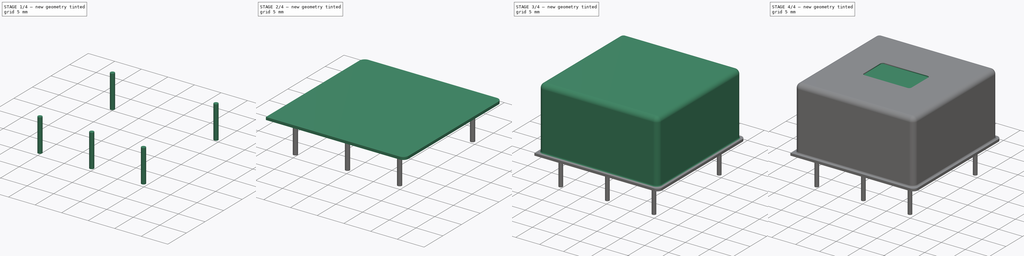
[diagram: build sequence overview — one tinted view per stage of 4, left to right]
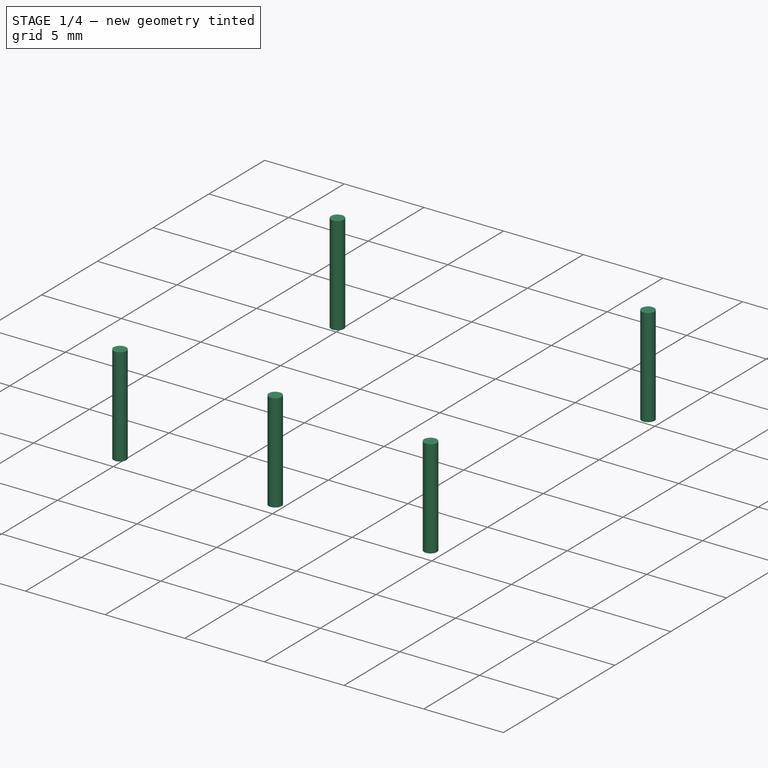
[diagram: stage 1 of 4 — iso view after this stage's code; geometry added in this stage tinted green]
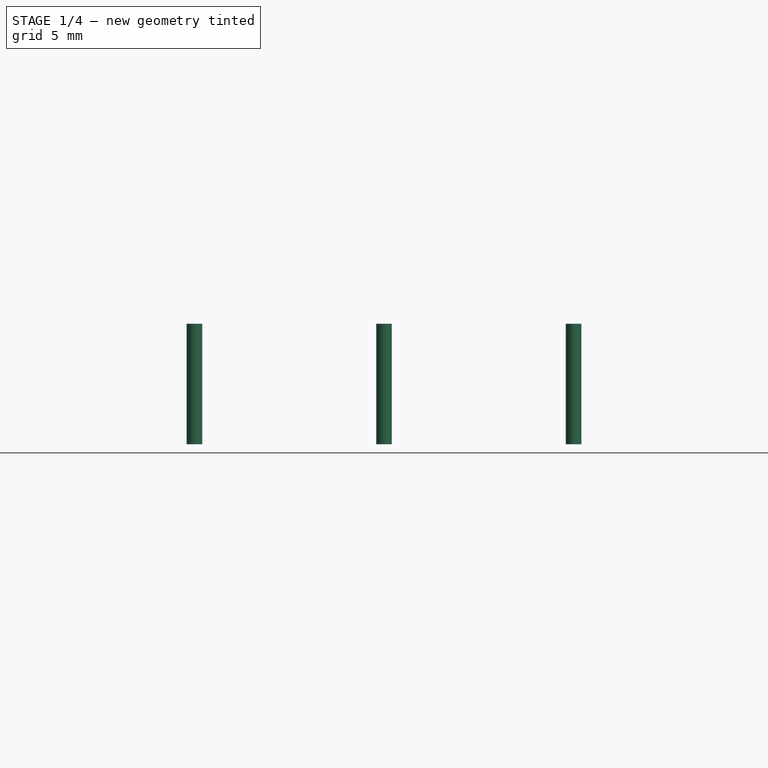
[diagram: stage 1 of 4 — front view after this stage's code; geometry added in this stage tinted green]
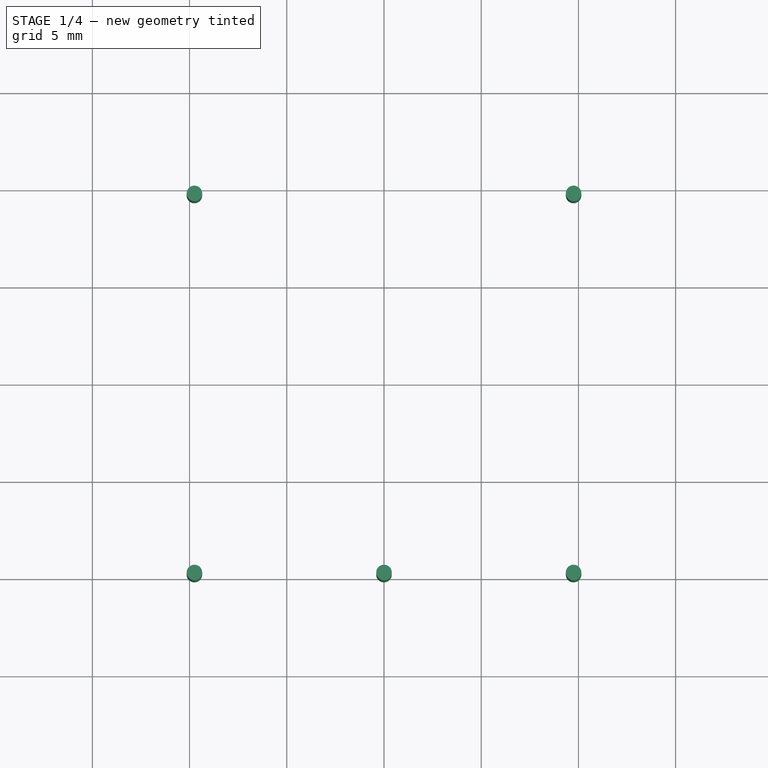
[diagram: stage 1 of 4 — top view after this stage's code; geometry added in this stage tinted green]
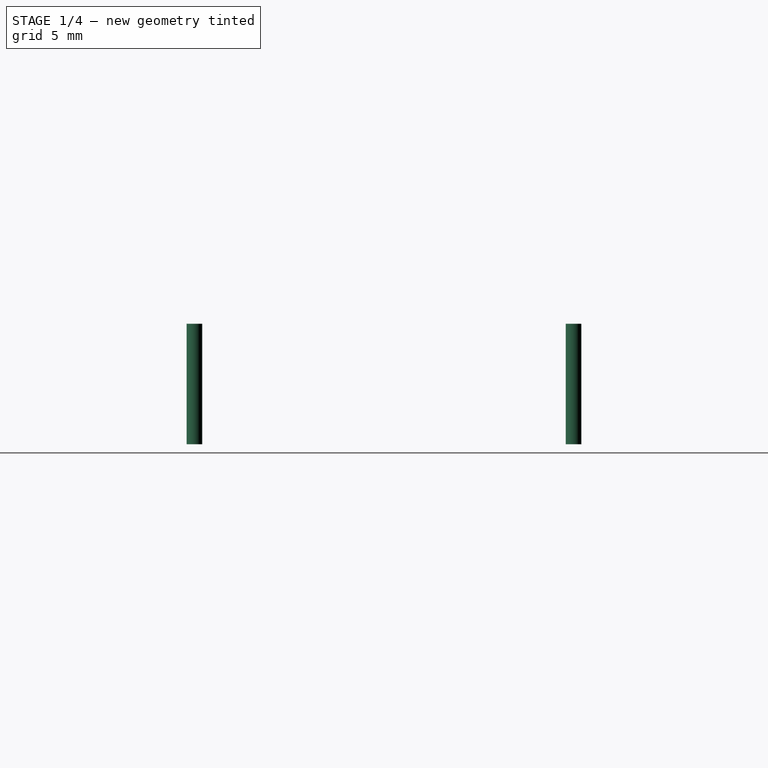
[diagram: stage 1 of 4 — right view after this stage's code; geometry added in this stage tinted green]
FCSTD DOCUMENT  (FreeCAD 0.16R6706 (Git))
Label: OCXO-Angelia
License: All rights reserved
LicenseURL: http://en.wikipedia.org/wiki/All_rights_reserved
objects: Sketcher::SketchObject×6, PartDesign::Revolution×3, Part::Fuse×3, PartDesign::Pad×2, PartDesign::Fillet×2, Part::FeaturePython×2, PartDesign::Pocket×1
note: 25 computed .brp shape members not serialized (recipe doc carries the construction recipe); baked Part::Feature solids carry a one-line shape summary decoded from their .brp

FEATURE [Sketcher::SketchObject] Sketch003
  Placement = pos=(0,9.75,0) rot=(1,0,0;1.5708rad)
  sketch-geometry (5):
    g0: LineSegment [constr] StartX=9.75 StartY=0 StartZ=0 EndX=9.75 EndY=-8 EndZ=0
    g1: LineSegment StartX=9.75 StartY=0 StartZ=0 EndX=10.15 EndY=0 EndZ=0
    g2: LineSegment StartX=10.15 StartY=0 StartZ=0 EndX=10.15 EndY=-6.2 EndZ=0
    g3: LineSegment StartX=10.15 StartY=-6.2 StartZ=0 EndX=9.75 EndY=-6.2 EndZ=0
    g4: LineSegment StartX=9.75 StartY=-6.2 StartZ=0 EndX=9.75 EndY=0 EndZ=0
  constraints (15):
    c: Vertical(g0)
    c: Coincident(g1,g2)
    c: Coincident(g2,g3)
    c: Coincident(g3,g4)
    c: Coincident(g4,g1)
    c: Horizontal(g1)
    c: Horizontal(g3)
    c: Vertical(g2)
    c: Vertical(g4)
    c: Coincident(g1,g0)
    c: DistanceY(g2,g2) = 6.2
    c: DistanceY(g0,g0) = 8
    c: DistanceX(g1,g1) = 0.4
    c: PointOnObject(g0,g-1)
    c: DistanceX(g0) = 9.75
FEATURE [PartDesign::Revolution] Revolution001
  Angle = 360
  Axis = (0,0,-8)
  Base = (9.75,9.75,0)
  Placement = pos=(0,9.75,0) rot=(1,0,0;1.5708rad)
  ReferenceAxis = -> Sketch003 [Axis0]
  Sketch = -> Sketch003
FEATURE [Part::FeaturePython] Array001  # Draft array (typed FeaturePython)
  Angle = 360
  ArrayType = 1
  Axis = (0,0,1)
  Base = -> Revolution001
  Center = (0,0,0)
  Fuse = false
  IntervalAxis = (0,0,0)
  IntervalX = (1,0,0)
  IntervalY = (0,1,0)
  IntervalZ = (0,0,0)
  NumberPolar = 4
  NumberX = 2
  NumberY = 2
  NumberZ = 1
FEATURE [Sketcher::SketchObject] Sketch005
  Placement = pos=(0,-9.75,0) rot=(-1,0,0;4.71239rad)
  sketch-geometry (4):
    g0: LineSegment StartX=0 StartY=0 StartZ=0 EndX=0.4 EndY=0 EndZ=0
    g1: LineSegment StartX=0.4 StartY=0 StartZ=0 EndX=0.4 EndY=-6.2 EndZ=0
    g2: LineSegment StartX=0.4 StartY=-6.2 StartZ=0 EndX=0 EndY=-6.2 EndZ=0
    g3: LineSegment StartX=0 StartY=-6.2 StartZ=0 EndX=0 EndY=0 EndZ=0
  constraints (11):
    c: Coincident(g0,g1)
    c: Coincident(g1,g2)
    c: Coincident(g2,g3)
    c: Coincident(g3,g0)
    c: Horizontal(g0)
    c: Horizontal(g2)
    c: Vertical(g1)
    c: Vertical(g3)
    c: DistanceY(g1,g1) = 6.2
    c: DistanceX(g0,g0) = 0.4
    c: Coincident(g0,g-1)
FEATURE [PartDesign::Revolution] Revolution002
  Angle = 360
  Axis = (0,0,1)
  Base = (0,-9.75,0)
  Placement = pos=(0,-9.75,0) rot=(-1,0,0;4.71239rad)
  ReferenceAxis = -> Sketch005 [V_Axis]
  Reversed = true
  Sketch = -> Sketch005
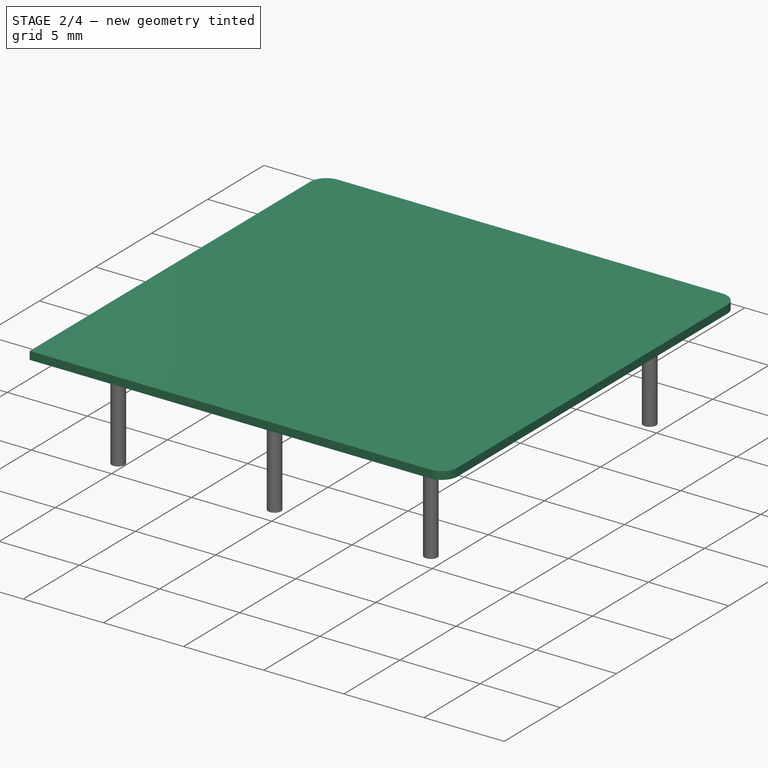
[diagram: stage 2 of 4 — iso view after this stage's code; geometry added in this stage tinted green]
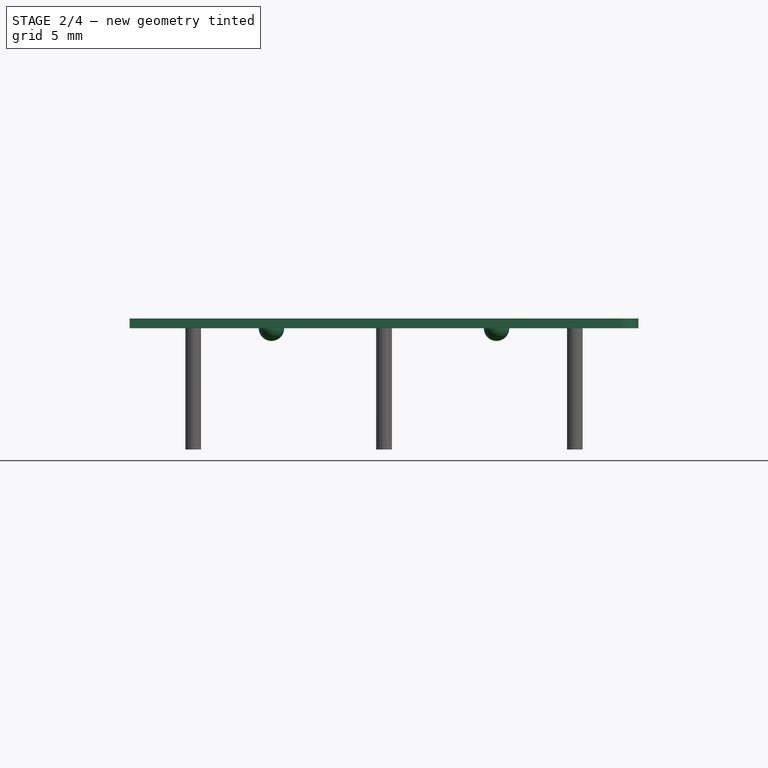
[diagram: stage 2 of 4 — front view after this stage's code; geometry added in this stage tinted green]
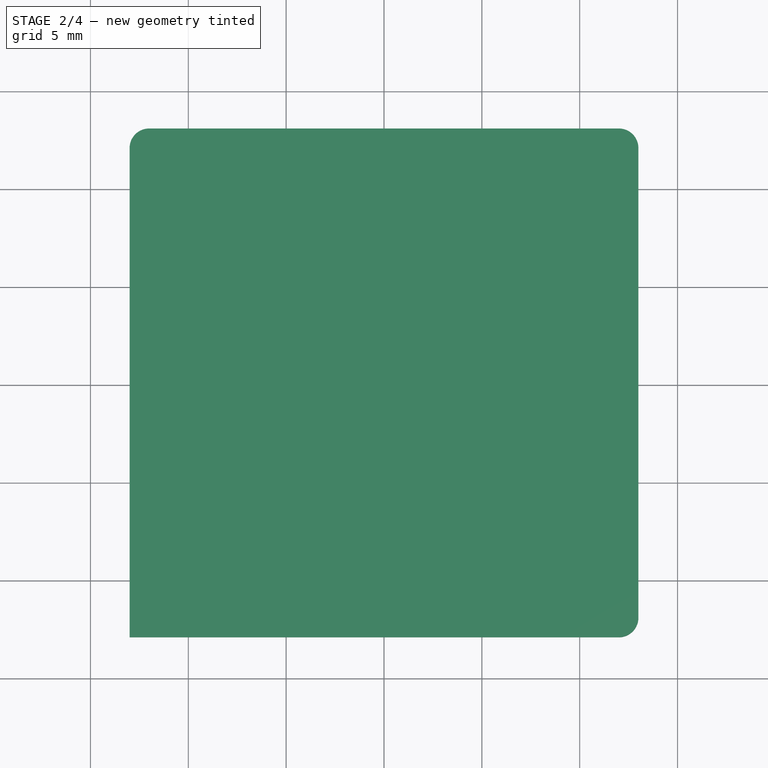
[diagram: stage 2 of 4 — top view after this stage's code; geometry added in this stage tinted green]
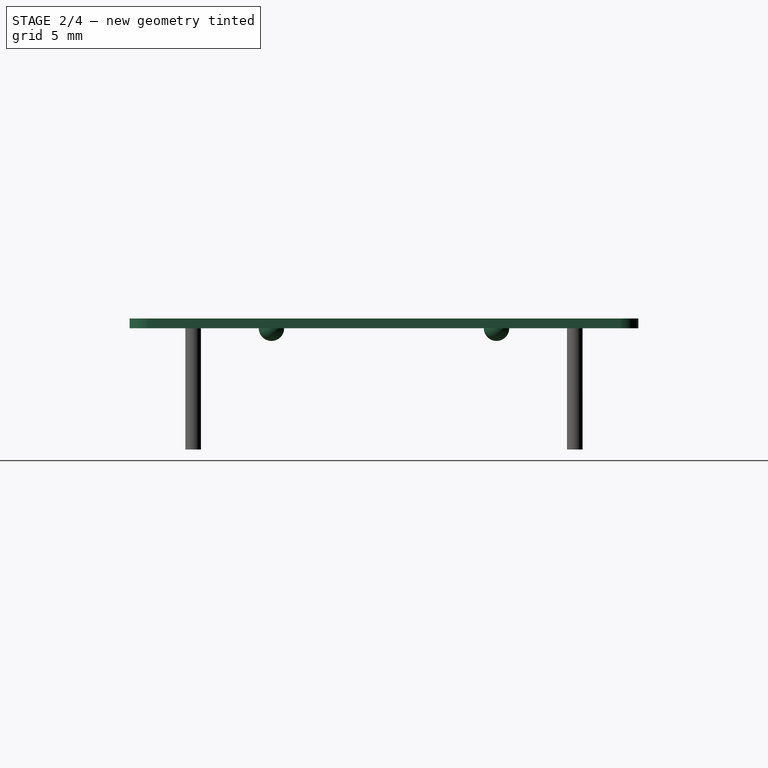
[diagram: stage 2 of 4 — right view after this stage's code; geometry added in this stage tinted green]
FEATURE [Sketcher::SketchObject] Sketch
  sketch-geometry (8):
    g0: Circle [constr] CenterX=0 CenterY=0 CenterZ=0 NormalX=0 NormalY=0 NormalZ=1 Radius=16.9706
    g1: LineSegment StartX=-12 StartY=13 StartZ=0 EndX=12 EndY=13 EndZ=0
    g2: LineSegment StartX=13 StartY=12 StartZ=0 EndX=13 EndY=-12 EndZ=0
    g3: LineSegment StartX=12 StartY=-13 StartZ=0 EndX=-13 EndY=-13 EndZ=0
    g4: LineSegment StartX=-13 StartY=-13 StartZ=0 EndX=-13 EndY=12 EndZ=0
    g5: ArcOfCircle CenterX=-12 CenterY=12 CenterZ=0 NormalX=0 NormalY=0 NormalZ=1 Radius=1 StartAngle=1.5708 EndAngle=3.14159
    g6: ArcOfCircle CenterX=12 CenterY=12 CenterZ=0 NormalX=0 NormalY=0 NormalZ=1 Radius=1 StartAngle=0 EndAngle=1.5708
    g7: ArcOfCircle CenterX=12 CenterY=-12 CenterZ=0 NormalX=0 NormalY=0 NormalZ=1 Radius=1 StartAngle=4.71239 EndAngle=6.28319
  constraints (20):
    c: Coincident(g3,g4)
    c: Horizontal(g1)
    c: Horizontal(g3)
    c: Vertical(g2)
    c: Vertical(g4)
    c: Tangent(g1,g5) = 1.5708
    c: Tangent(g4,g5) = 1.5708
    c: Tangent(g1,g6) = 1.5708
    c: Tangent(g2,g6) = 1.5708
    c: Tangent(g2,g7) = 1.5708
    c: Tangent(g3,g7) = 1.5708
    c: PointOnObject(g6,g0)
    c: PointOnObject(g5,g0)
    c: PointOnObject(g7,g0)
    c: Radius(g5) = 1
    c: Equal(g5,g6)
    c: Equal(g5,g7)
    c: DistanceX(g4,g2) = 26
    c: DistanceY(g3,g1) = 26
    c: Coincident(g0,g-1)
FEATURE [PartDesign::Pad] Pad
  Length = 0.5
  Length2 = 100
  Sketch = -> Sketch
  Type = 0
FEATURE [Sketcher::SketchObject] Sketch002
  Placement = pos=(0,5.75,0) rot=(1,0,0;1.5708rad)
  sketch-geometry (4):
    g0: LineSegment StartX=5.75 StartY=-0.65 StartZ=0 EndX=5.75 EndY=0 EndZ=0
    g1: LineSegment StartX=5.75 StartY=0 StartZ=0 EndX=6.4 EndY=0 EndZ=0
    g2: ArcOfCircle CenterX=5.75 CenterY=0 CenterZ=0 NormalX=0 NormalY=0 NormalZ=1 Radius=0.65 StartAngle=4.71239 EndAngle=6.28319
    g3: LineSegment [constr] StartX=5.75 StartY=0 StartZ=0 EndX=5.75 EndY=-3 EndZ=0
  constraints (12):
    c: Vertical(g0)
    c: Coincident(g0,g1)
    c: Horizontal(g1)
    c: Coincident(g2,g0)
    c: Coincident(g0,g2)
    c: Coincident(g1,g2)
    c: PointOnObject(g0,g-1)
    c: DistanceY(g0,g0) = 0.65
    c: Coincident(g3,g0)
    c: Vertical(g3)
    c: DistanceY(g3,g3) = 3
    c: DistanceX(g0) = 5.75
FEATURE [PartDesign::Revolution] Revolution
  Angle = 360
  Axis = (0,0,-3)
  Base = (5.75,5.75,0)
  Placement = pos=(0,5.75,0) rot=(1,0,0;1.5708rad)
  ReferenceAxis = -> Sketch002 [Axis0]
  Sketch = -> Sketch002
FEATURE [Part::FeaturePython] Array  # Draft array (typed FeaturePython)
  Angle = 360
  ArrayType = 1
  Axis = (0,0,1)
  Base = -> Revolution
  Center = (0,0,0)
  Fuse = false
  IntervalAxis = (0,0,0)
  IntervalX = (1,0,0)
  IntervalY = (0,1,0)
  IntervalZ = (0,0,0)
  NumberPolar = 4
  NumberX = 2
  NumberY = 2
  NumberZ = 1
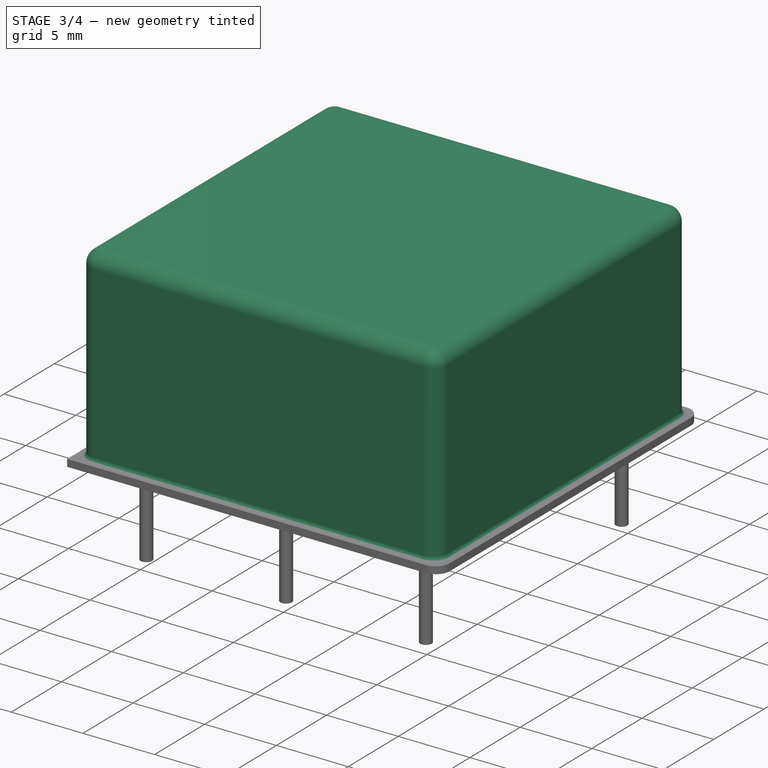
[diagram: stage 3 of 4 — iso view after this stage's code; geometry added in this stage tinted green]
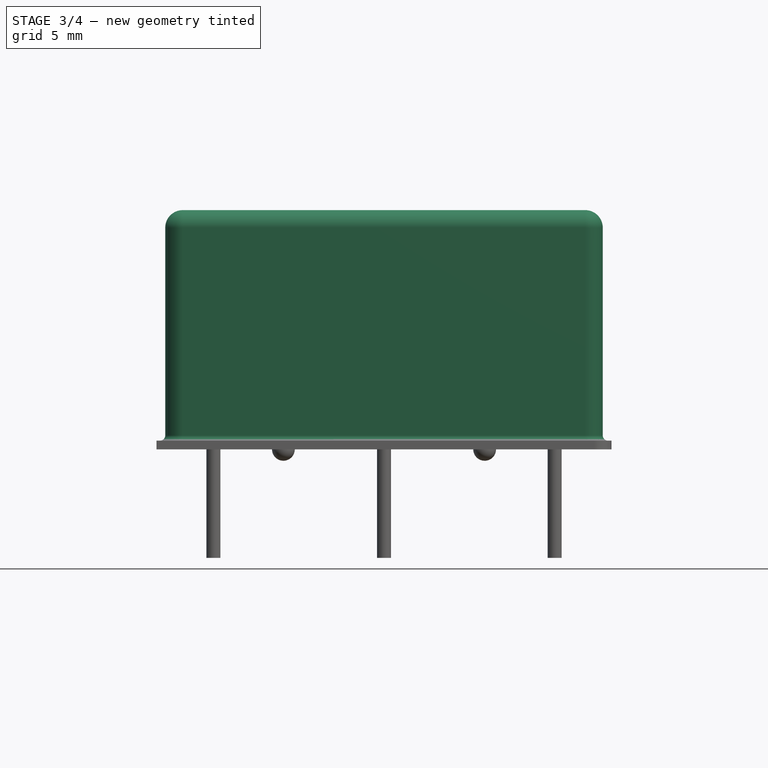
[diagram: stage 3 of 4 — front view after this stage's code; geometry added in this stage tinted green]
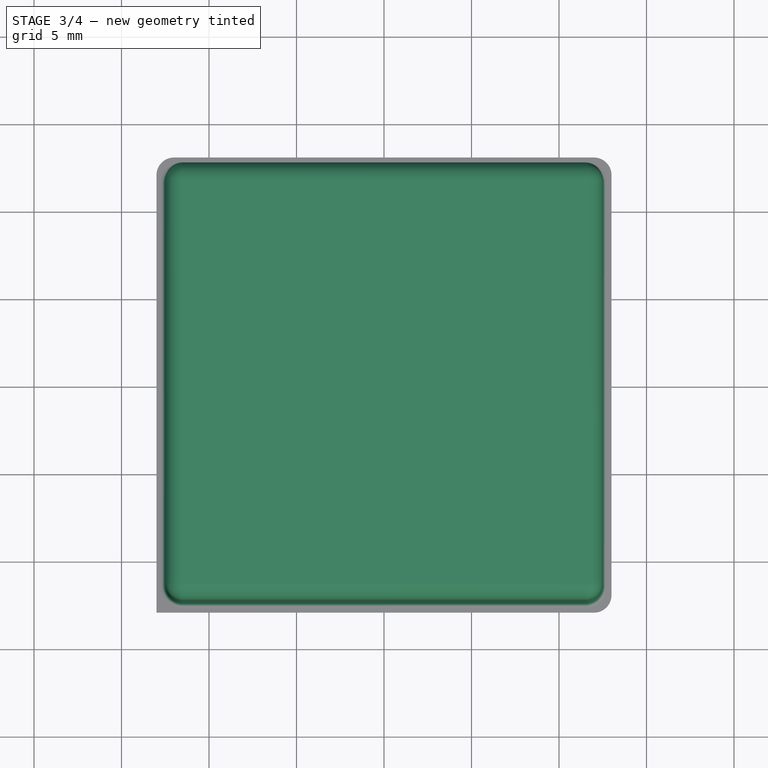
[diagram: stage 3 of 4 — top view after this stage's code; geometry added in this stage tinted green]
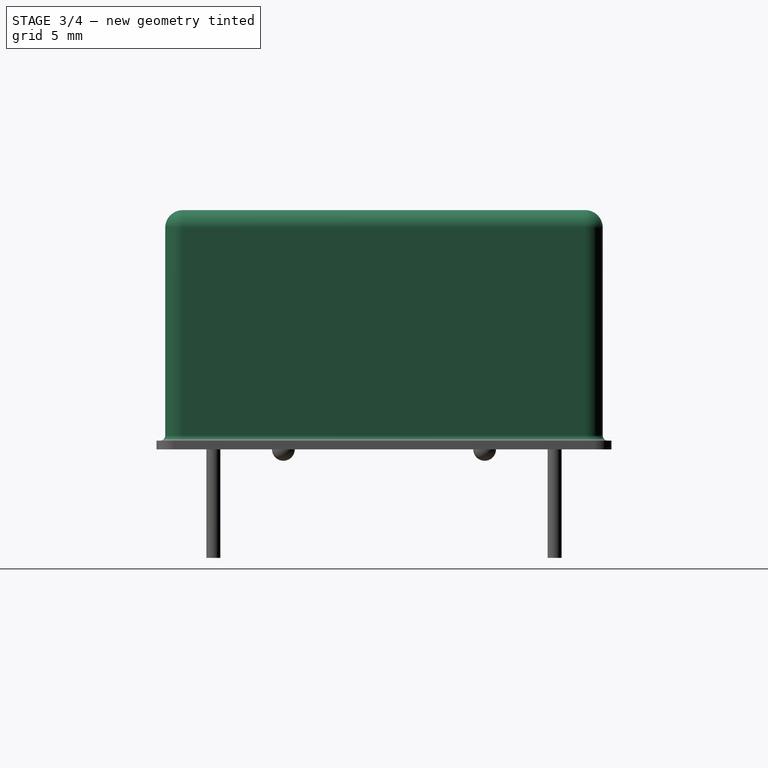
[diagram: stage 3 of 4 — right view after this stage's code; geometry added in this stage tinted green]
FEATURE [Sketcher::SketchObject] Sketch001
  Placement = pos=(0,0,0.5) rot=(0,0,1;0rad)
  Support = -> Pad [Face9]
  sketch-geometry (9):
    g0: LineSegment StartX=-11.5 StartY=12.5 StartZ=0 EndX=11.5 EndY=12.5 EndZ=0
    g1: LineSegment StartX=12.5 StartY=11.5 StartZ=0 EndX=12.5 EndY=-11.5 EndZ=0
    g2: LineSegment StartX=11.5 StartY=-12.5 StartZ=0 EndX=-11.5 EndY=-12.5 EndZ=0
    g3: LineSegment StartX=-12.5 StartY=-11.5 StartZ=0 EndX=-12.5 EndY=11.5 EndZ=0
    g4: Circle [constr] CenterX=0 CenterY=0 CenterZ=0 NormalX=0 NormalY=0 NormalZ=1 Radius=16.2635
    g5: ArcOfCircle CenterX=-11.5 CenterY=11.5 CenterZ=0 NormalX=0 NormalY=0 NormalZ=1 Radius=1 StartAngle=1.5708 EndAngle=3.14159
    g6: ArcOfCircle CenterX=-11.5 CenterY=-11.5 CenterZ=0 NormalX=0 NormalY=0 NormalZ=1 Radius=1 StartAngle=3.14159 EndAngle=4.71239
    g7: ArcOfCircle CenterX=11.5 CenterY=-11.5 CenterZ=0 NormalX=0 NormalY=0 NormalZ=1 Radius=1 StartAngle=4.71239 EndAngle=6.28319
    g8: ArcOfCircle CenterX=11.5 CenterY=11.5 CenterZ=0 NormalX=0 NormalY=0 NormalZ=1 Radius=1 StartAngle=0 EndAngle=1.5708
  constraints (22):
    c: Horizontal(g0)
    c: Horizontal(g2)
    c: Vertical(g1)
    c: Vertical(g3)
    c: Coincident(g4,g-1)
    c: Tangent(g0,g5) = 1.5708
    c: Tangent(g3,g5) = 1.5708
    c: Tangent(g2,g6) = 1.5708
    c: Tangent(g3,g6) = 1.5708
    c: Tangent(g1,g7) = 1.5708
    c: Tangent(g2,g7) = 1.5708
    c: Tangent(g0,g8) = 1.5708
    c: Tangent(g1,g8) = 1.5708
    c: PointOnObject(g8,g4)
    c: PointOnObject(g5,g4)
    c: PointOnObject(g7,g4)
    c: Radius(g7) = 1
    c: Equal(g7,g6)
    c: Equal(g7,g5)
    c: Equal(g7,g8)
    c: DistanceX(g3,g1) = 25
    c: DistanceY(g2,g0) = 25
FEATURE [PartDesign::Pad] Pad001
  Length = 13.17
  Length2 = 100
  Sketch = -> Sketch001
  Type = 0
FEATURE [PartDesign::Fillet] Fillet
  Base = -> Pad001 [Edge20,Edge19,Edge26,Edge21,Edge25,Edge22,Edge23,Edge24]
  Radius = 0.3
FEATURE [PartDesign::Fillet] Fillet001
  Base = -> Fillet [Edge61,Edge57,Edge54,Edge49,Edge47,Edge52,Edge55,Edge60]
  Radius = 1
FEATURE [Part::Fuse] Fusion
  Base = -> Fillet001
  Tool = -> Array
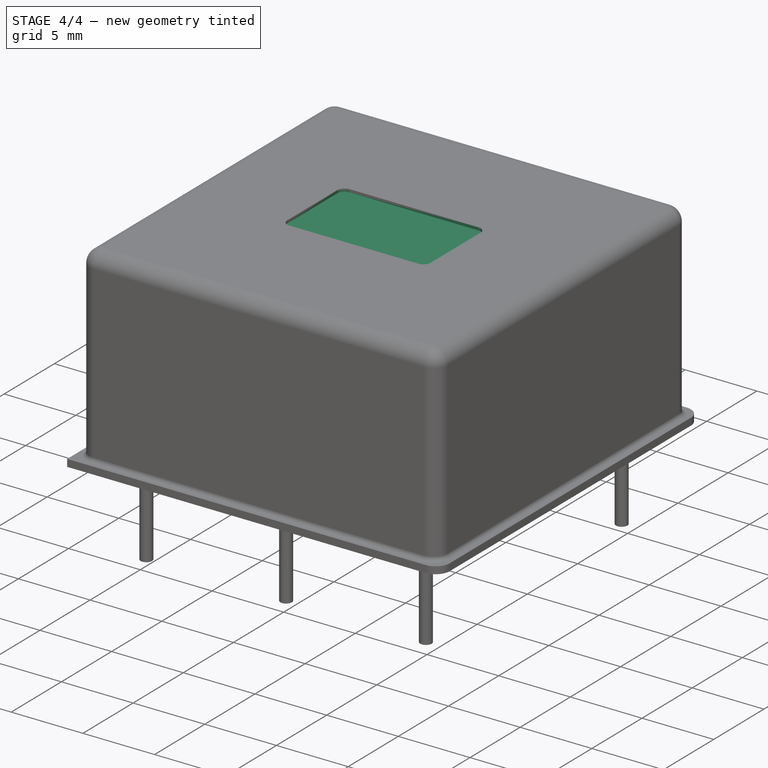
[diagram: stage 4 of 4 — iso view after this stage's code; geometry added in this stage tinted green]
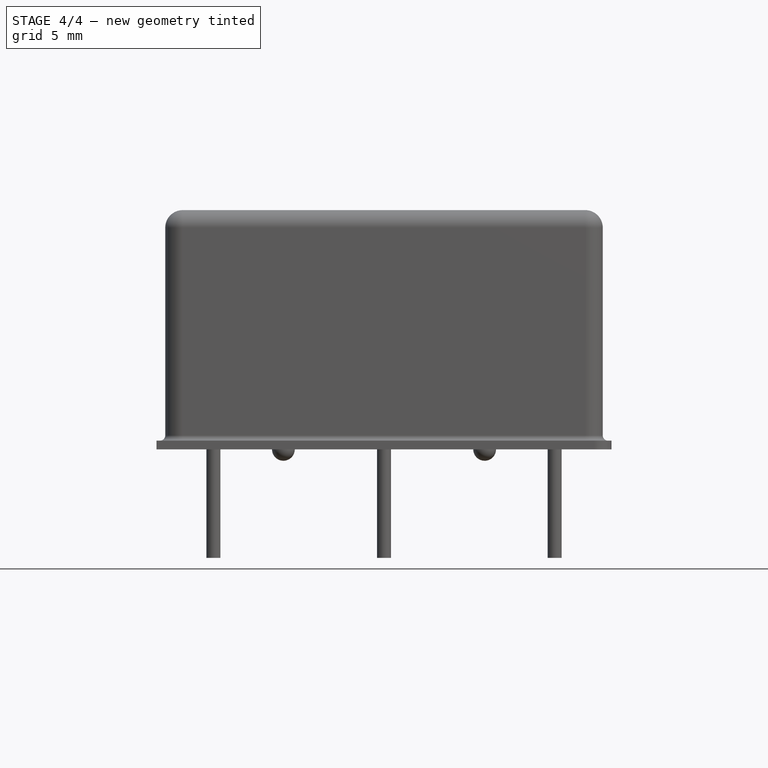
[diagram: stage 4 of 4 — front view after this stage's code; geometry added in this stage tinted green]
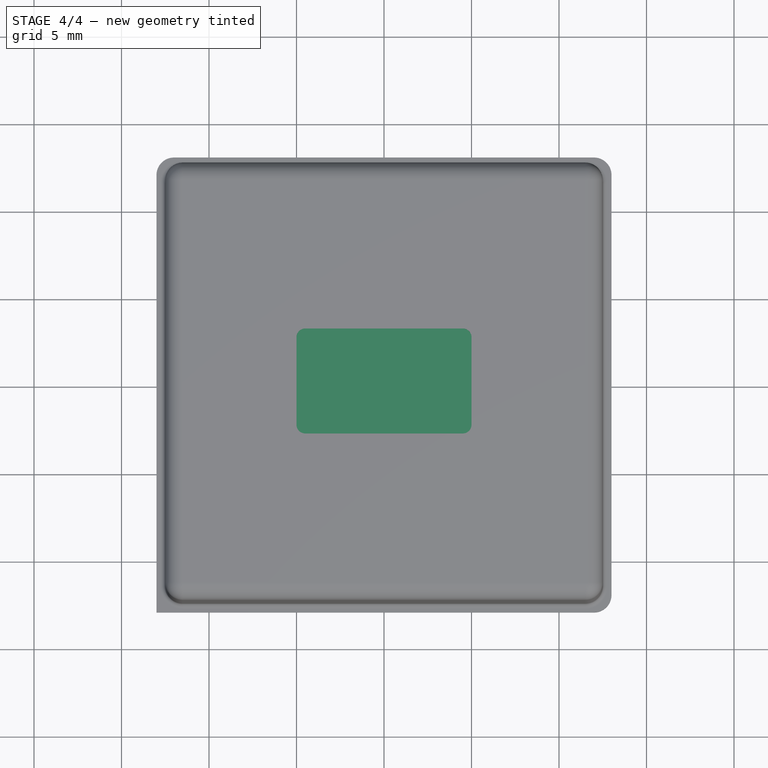
[diagram: stage 4 of 4 — top view after this stage's code; geometry added in this stage tinted green]
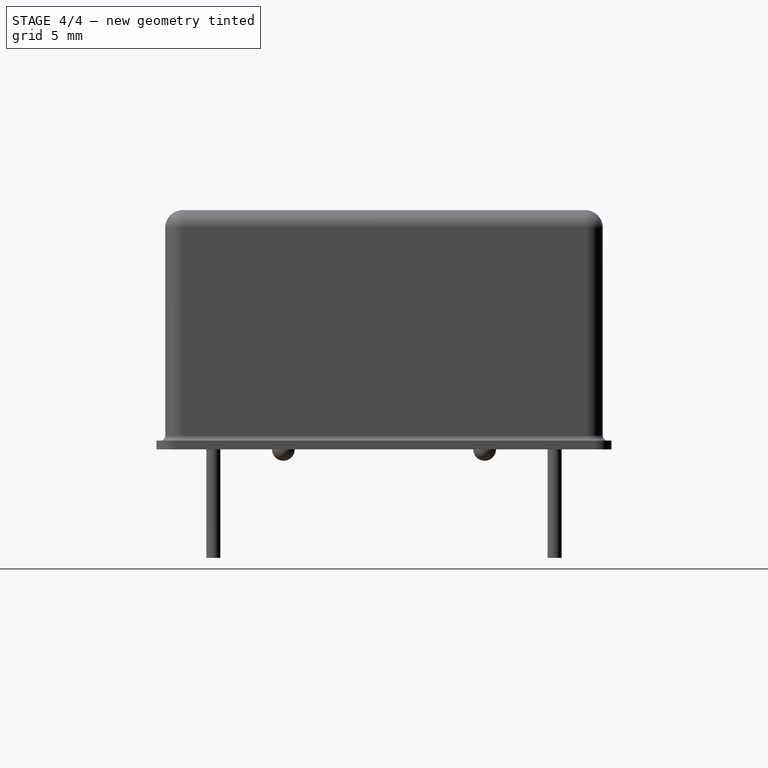
[diagram: stage 4 of 4 — right view after this stage's code; geometry added in this stage tinted green]
FEATURE [Part::Fuse] Fusion001
  Base = -> Fusion
  Tool = -> Array001
FEATURE [Sketcher::SketchObject] Sketch004
  Placement = pos=(0,0,13.67) rot=(0,0,1;0rad)
  Support = -> Fusion001 [Face9]
  sketch-geometry (8):
    g0: LineSegment StartX=-4.5 StartY=3 StartZ=0 EndX=4.5 EndY=3 EndZ=0
    g1: LineSegment StartX=5 StartY=2.5 StartZ=0 EndX=5 EndY=-2.5 EndZ=0
    g2: LineSegment StartX=4.5 StartY=-3 StartZ=0 EndX=-4.5 EndY=-3 EndZ=0
    g3: LineSegment StartX=-5 StartY=-2.5 StartZ=0 EndX=-5 EndY=2.5 EndZ=0
    g4: ArcOfCircle CenterX=-4.5 CenterY=2.5 CenterZ=0 NormalX=0 NormalY=0 NormalZ=1 Radius=0.5 StartAngle=1.5708 EndAngle=3.14159
    g5: ArcOfCircle CenterX=4.5 CenterY=2.5 CenterZ=0 NormalX=0 NormalY=0 NormalZ=1 Radius=0.5 StartAngle=0 EndAngle=1.5708
    g6: ArcOfCircle CenterX=4.5 CenterY=-2.5 CenterZ=0 NormalX=0 NormalY=0 NormalZ=1 Radius=0.5 StartAngle=4.71239 EndAngle=6.28319
    g7: ArcOfCircle CenterX=-4.5 CenterY=-2.5 CenterZ=0 NormalX=0 NormalY=0 NormalZ=1 Radius=0.5 StartAngle=3.14159 EndAngle=4.71239
  constraints (20):
    c: Horizontal(g0)
    c: Horizontal(g2)
    c: Vertical(g1)
    c: Vertical(g3)
    c: Tangent(g0,g4) = 1.5708
    c: Tangent(g3,g4) = 1.5708
    c: Tangent(g0,g5) = 1.5708
    c: Tangent(g1,g5) = 1.5708
    c: Tangent(g1,g6) = 1.5708
    c: Tangent(g2,g6) = 1.5708
    c: Tangent(g2,g7) = 1.5708
    c: Tangent(g3,g7) = 1.5708
    c: Radius(g4) = 0.5
    c: Equal(g4,g7)
    c: Equal(g4,g6)
    c: Equal(g4,g5)
    c: DistanceX(g3,g1) = 10
    c: DistanceY(g2,g0) = 6
    c: DistanceY(g0) = 3
    c: DistanceX(g1) = 5
FEATURE [PartDesign::Pocket] Pocket
  Length = 0.2
  Sketch = -> Sketch004
  Type = 0
FEATURE [Part::Fuse] Fusion002
  Base = -> Pocket
  Tool = -> Revolution002
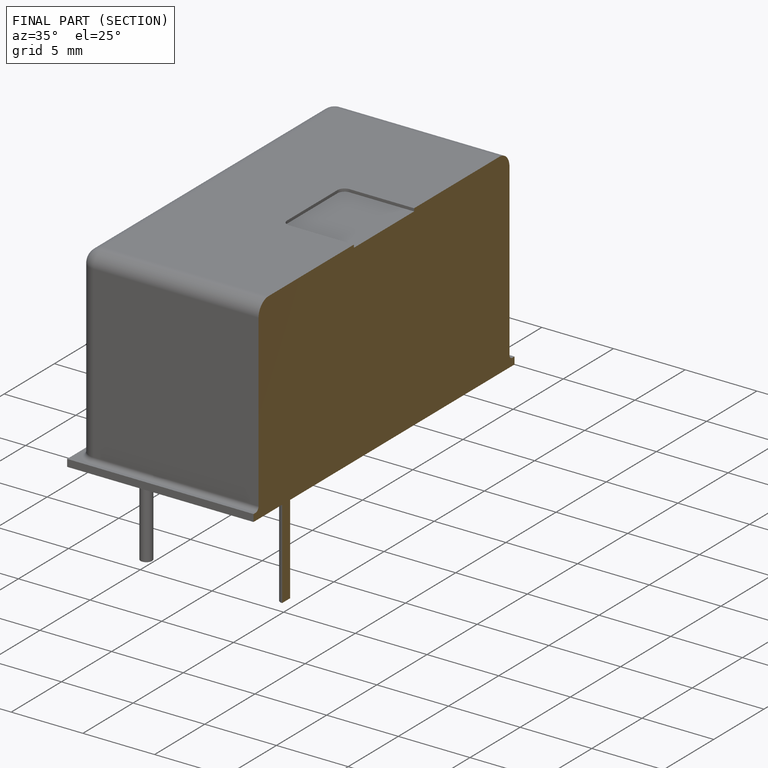
[diagram: finished part — half-section view (interior)]
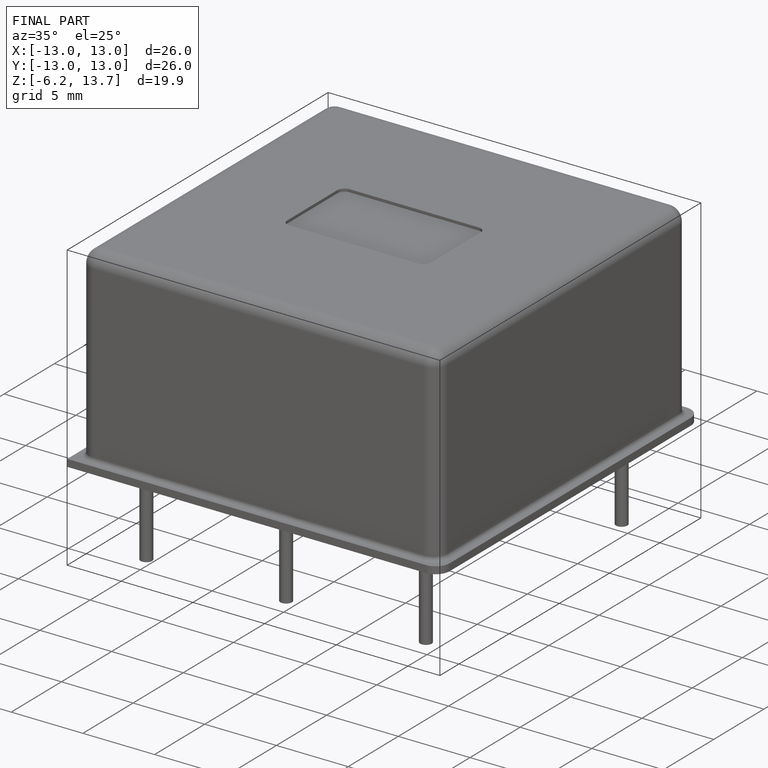
[diagram: finished part — iso view with bounding-box wireframe]
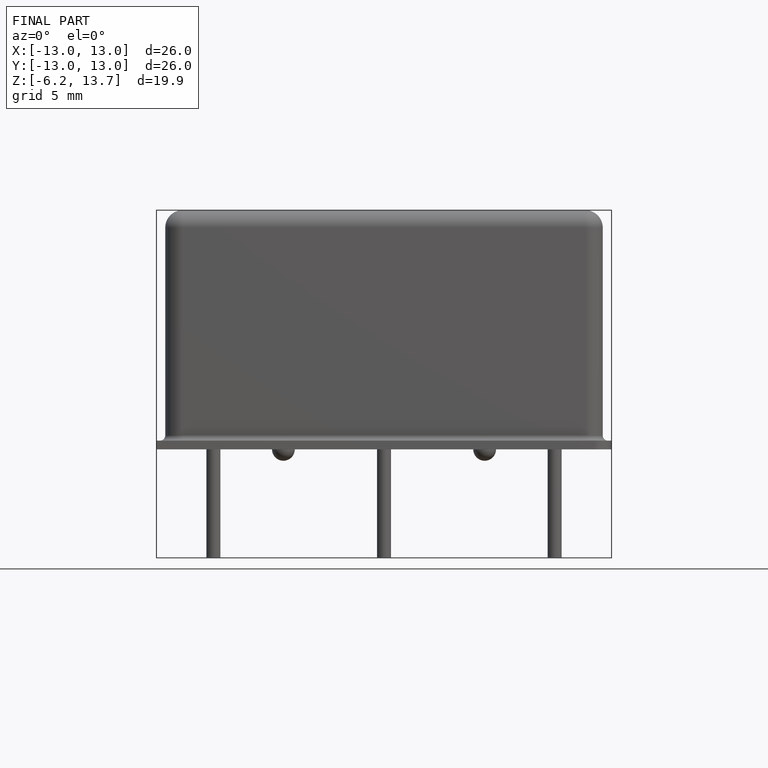
[diagram: finished part — front view with bounding-box wireframe]
